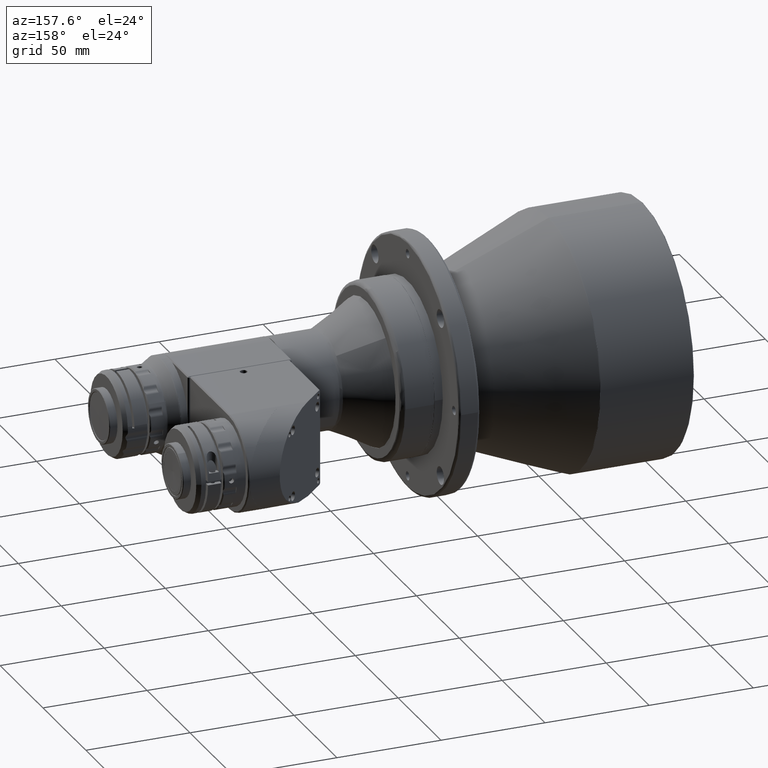
[diagram: clean part render]
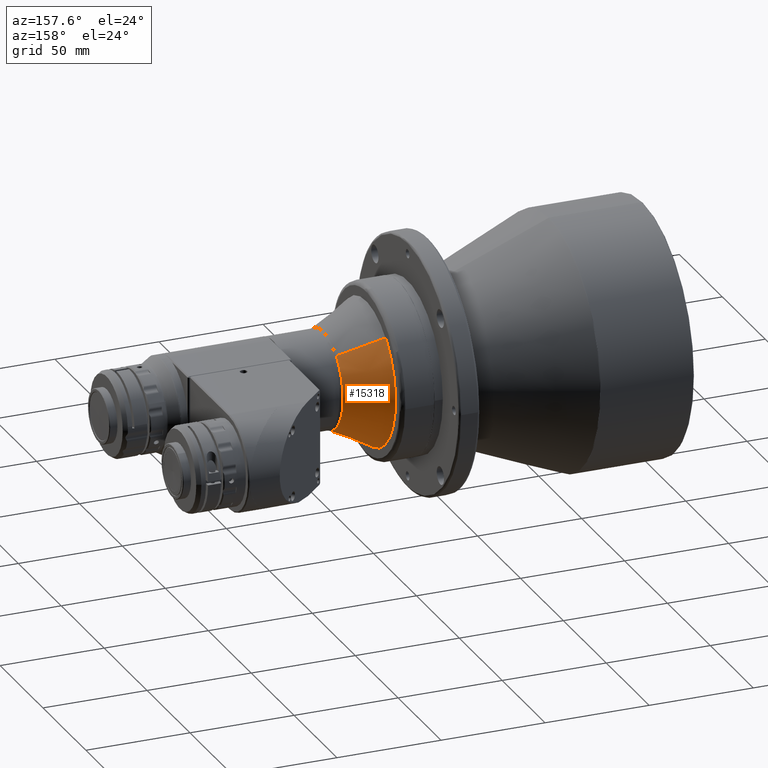
[diagram: same view with one face highlighted and labeled with its STEP entity id]
A machine part, auxiliary view. The second image highlights one B-rep face of the part: STEP entity #15318.
In plain terms, the highlighted conical surface has half-angle 28 deg.
Its self-contained STEP definition (entity closure, byte-faithful):
#115 = AXIS2_PLACEMENT_3D ( 'NONE', #5849, #2902, #7232 ) ;
#368 = LINE ( 'NONE', #3489, #3417 ) ;
#384 = CIRCLE ( 'NONE', #115, 34.50000000000000000 ) ;
#585 = EDGE_CURVE ( 'NONE', #18555, #13192, #384, .T. ) ;
#620 = LINE ( 'NONE', #4064, #15029 ) ;
#1442 = DIRECTION ( 'NONE',  ( 0.0000000000000000000, -0.7500028047926289300, 0.6614346474166511400 ) ) ;
#1540 = CARTESIAN_POINT ( 'NONE',  ( 153.6679236716478000, 15.44526444336678000, 17.51343341104410500 ) ) ;
#2681 = EDGE_CURVE ( 'NONE', #5667, #6322, #620, .T. ) ;
#2902 = DIRECTION ( 'NONE',  ( -1.000000000000000000, 0.0000000000000000000, 0.0000000000000000000 ) ) ;
#3390 = EDGE_CURVE ( 'NONE', #13559, #13192, #368, .T. ) ;
#3417 = VECTOR ( 'NONE', #11186, 1000.000000000000200 ) ;
#3489 = CARTESIAN_POINT ( 'NONE',  ( 153.6679236720000000, -15.44526444324292100, -17.51343341090365200 ) ) ;
#4064 = CARTESIAN_POINT ( 'NONE',  ( 153.6679236720000000, 15.44526444324292000, 17.51343341090365500 ) ) ;
#4421 = EDGE_CURVE ( 'NONE', #12320, #13559, #6019, .T. ) ;
#5667 = VERTEX_POINT ( 'NONE', #1540 ) ;
#5849 = CARTESIAN_POINT ( 'NONE',  ( 132.6999999999999900, 0.0000000000000000000, 0.0000000000000000000 ) ) ;
#6019 = CIRCLE ( 'NONE', #15061, 23.35115722167808600 ) ;
#6322 = VERTEX_POINT ( 'NONE', #7749 ) ;
#6766 = CARTESIAN_POINT ( 'NONE',  ( 132.6999999999999900, -1.526150888131288900, -34.46622786825759000 ) ) ;
#7232 = DIRECTION ( 'NONE',  ( 0.0000000000000000000, -0.7500028047926289300, 0.6614346474166511400 ) ) ;
#7504 = DIRECTION ( 'NONE',  ( -1.000000000000000000, 0.0000000000000000000, 0.0000000000000000000 ) ) ;
#7749 = CARTESIAN_POINT ( 'NONE',  ( 132.6999999999999900, 22.81949533587446100, 25.87509676534570200 ) ) ;
#7752 = ORIENTED_EDGE ( 'NONE', *, *, #4421, .T. ) ;
#8425 = CARTESIAN_POINT ( 'NONE',  ( 153.6679236716478000, 0.0000000000000000000, 0.0000000000000000000 ) ) ;
#8497 = ORIENTED_EDGE ( 'NONE', *, *, #3390, .T. ) ;
#8875 = CARTESIAN_POINT ( 'NONE',  ( 132.6999999999999900, -22.81949533587446800, -25.87509676534571000 ) ) ;
#9467 = FACE_OUTER_BOUND ( 'NONE', #9523, .T. ) ;
#9523 = EDGE_LOOP ( 'NONE', ( #13279, #13925, #7752, #8497, #11199, #13949 ) ) ;
#9721 = DIRECTION ( 'NONE',  ( 0.0000000000000000000, -0.6614346474166511400, -0.7500028047926290400 ) ) ;
#9785 = CARTESIAN_POINT ( 'NONE',  ( 153.6679236720000000, 0.0000000000000000000, 0.0000000000000000000 ) ) ;
#10244 = DIRECTION ( 'NONE',  ( 0.0000000000000000000, -0.6614346474166510300, -0.7500028047926290400 ) ) ;
#10437 = DIRECTION ( 'NONE',  ( -1.000000000000000000, -1.965480682299357900E-016, -2.228664661350395000E-016 ) ) ;
#10807 = CARTESIAN_POINT ( 'NONE',  ( 153.6679236715975500, 17.51343340975629600, -15.44526444542397700 ) ) ;
#11186 = DIRECTION ( 'NONE',  ( -0.8829475928547443300, -0.3105247576086328000, -0.3521049888656965200 ) ) ;
#11199 = ORIENTED_EDGE ( 'NONE', *, *, #585, .F. ) ;
#11565 = AXIS2_PLACEMENT_3D ( 'NONE', #8425, #15728, #18705 ) ;
#12320 = VERTEX_POINT ( 'NONE', #10807 ) ;
#12704 = CARTESIAN_POINT ( 'NONE',  ( 153.6679236716478000, -15.44526444336678100, -17.51343341104410100 ) ) ;
#12756 = CONICAL_SURFACE ( 'NONE', #16987, 23.35115722099999800, 0.4886921905673211600 ) ;
#13192 = VERTEX_POINT ( 'NONE', #8875 ) ;
#13279 = ORIENTED_EDGE ( 'NONE', *, *, #2681, .F. ) ;
#13543 = CARTESIAN_POINT ( 'NONE',  ( 132.6999999999999900, 0.0000000000000000000, 0.0000000000000000000 ) ) ;
#13559 = VERTEX_POINT ( 'NONE', #12704 ) ;
#13925 = ORIENTED_EDGE ( 'NONE', *, *, #15233, .T. ) ;
#13949 = ORIENTED_EDGE ( 'NONE', *, *, #15510, .F. ) ;
#14468 = DIRECTION ( 'NONE',  ( -1.000000000000000000, -9.827403411649587100E-017, -1.114332330692523100E-016 ) ) ;
#14604 = DIRECTION ( 'NONE',  ( -0.8829475928547445600, 0.3105247576086325200, 0.3521049888656963600 ) ) ;
#14910 = CIRCLE ( 'NONE', #18025, 34.50000000000000000 ) ;
#15029 = VECTOR ( 'NONE', #14604, 1000.000000000000200 ) ;
#15061 = AXIS2_PLACEMENT_3D ( 'NONE', #19488, #10437, #10244 ) ;
#15233 = EDGE_CURVE ( 'NONE', #5667, #12320, #15371, .T. ) ;
#15318 = ADVANCED_FACE ( 'NONE', ( #9467 ), #12756, .T. ) ;
#15371 = CIRCLE ( 'NONE', #11565, 23.35115722167808600 ) ;
#15510 = EDGE_CURVE ( 'NONE', #6322, #18555, #14910, .T. ) ;
#15728 = DIRECTION ( 'NONE',  ( -1.000000000000000000, 1.965480682299357900E-016, 2.228664661350395000E-016 ) ) ;
#16987 = AXIS2_PLACEMENT_3D ( 'NONE', #9785, #14468, #9721 ) ;
#18025 = AXIS2_PLACEMENT_3D ( 'NONE', #13543, #7504, #1442 ) ;
#18555 = VERTEX_POINT ( 'NONE', #6766 ) ;
#18705 = DIRECTION ( 'NONE',  ( 0.0000000000000000000, -0.6614346474166510300, -0.7500028047926290400 ) ) ;
#19488 = CARTESIAN_POINT ( 'NONE',  ( 153.6679236716478000, 0.0000000000000000000, 0.0000000000000000000 ) ) ;